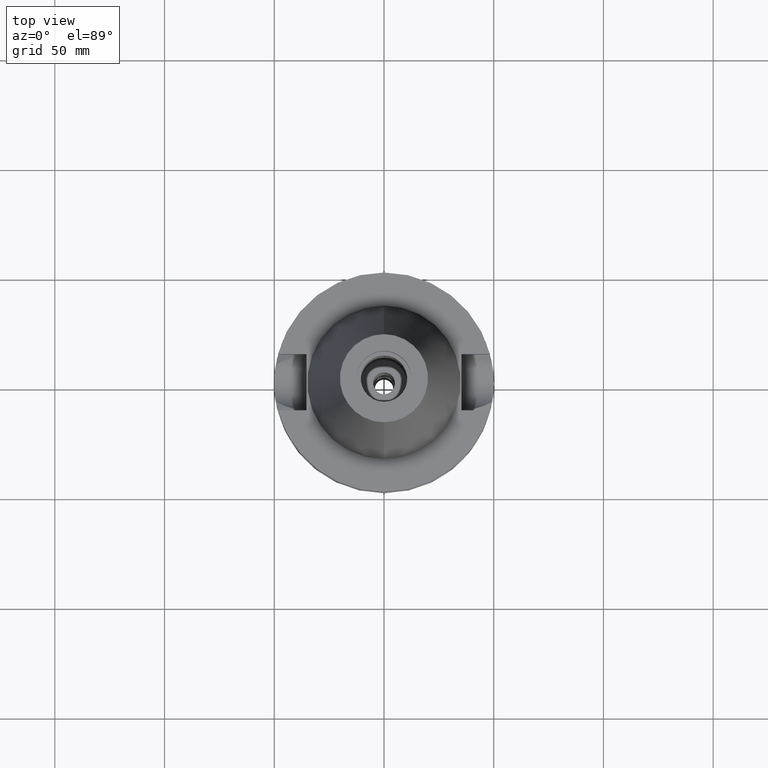
[diagram: clean part render]
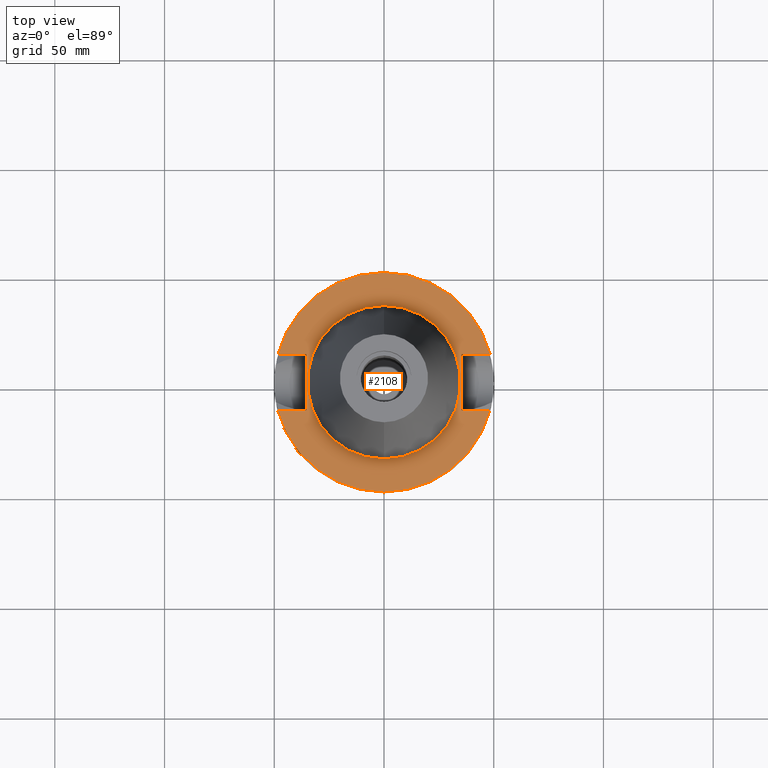
[diagram: same view with one face highlighted and labeled with its STEP entity id]
A machine part, top view. The second image highlights one B-rep face of the part: STEP entity #2108.
In plain terms, the highlighted planar face has unit normal (0, 0, -1).
Its self-contained STEP definition (entity closure, byte-faithful):
#11 = CARTESIAN_POINT ( 'NONE',  ( 0.0000000000000000000, 2.652462502272999887E-14, -3.000000000000000000 ) ) ;
#29 = DIRECTION ( 'NONE',  ( 1.000000000000000000, 0.0000000000000000000, 0.0000000000000000000 ) ) ;
#72 = EDGE_CURVE ( 'NONE', #1642, #747, #3582, .T. ) ;
#199 = FACE_BOUND ( 'NONE', #912, .T. ) ;
#252 = VERTEX_POINT ( 'NONE', #862 ) ;
#261 = DIRECTION ( 'NONE',  ( 0.0000000000000000000, -1.000000000000000000, 0.0000000000000000000 ) ) ;
#339 = VECTOR ( 'NONE', #29, 1000.000000000000000 ) ;
#360 = VERTEX_POINT ( 'NONE', #3191 ) ;
#400 = AXIS2_PLACEMENT_3D ( 'NONE', #2760, #3333, #2718 ) ;
#424 = CARTESIAN_POINT ( 'NONE',  ( -48.32057015392000210, 12.84999999999999964, -3.000000000000000000 ) ) ;
#465 = PLANE ( 'NONE',  #400 ) ;
#503 = CARTESIAN_POINT ( 'NONE',  ( 0.0000000000000000000, 2.652462502272999887E-14, -3.000000000000000000 ) ) ;
#559 = VECTOR ( 'NONE', #261, 1000.000000000000000 ) ;
#647 = CARTESIAN_POINT ( 'NONE',  ( 48.32057015392000210, 12.84999999999999964, -3.000000000000000000 ) ) ;
#665 = EDGE_CURVE ( 'NONE', #2695, #3608, #2510, .T. ) ;
#731 = ORIENTED_EDGE ( 'NONE', *, *, #1996, .T. ) ;
#747 = VERTEX_POINT ( 'NONE', #647 ) ;
#811 = CARTESIAN_POINT ( 'NONE',  ( 0.0000000000000000000, 34.92499999999999716, -3.000000000000000000 ) ) ;
#862 = CARTESIAN_POINT ( 'NONE',  ( 35.39999999999999858, 12.84999999999999964, -3.000000000000000000 ) ) ;
#912 = EDGE_LOOP ( 'NONE', ( #2364, #1498 ) ) ;
#920 = DIRECTION ( 'NONE',  ( 0.0000000000000000000, 1.000000000000000000, 0.0000000000000000000 ) ) ;
#927 = CARTESIAN_POINT ( 'NONE',  ( 0.0000000000000000000, 2.652462502272999887E-14, -3.000000000000000000 ) ) ;
#1009 = AXIS2_PLACEMENT_3D ( 'NONE', #2319, #1152, #3201 ) ;
#1031 = CARTESIAN_POINT ( 'NONE',  ( 48.32057015392000210, -12.84999999999999964, -3.000000000000000000 ) ) ;
#1056 = VECTOR ( 'NONE', #2413, 1000.000000000000000 ) ;
#1091 = CARTESIAN_POINT ( 'NONE',  ( -35.39999999999999858, -12.84999999999999964, -3.000000000000000000 ) ) ;
#1097 = CARTESIAN_POINT ( 'NONE',  ( 35.39999999999999858, 12.84999999999999964, -3.000000000000000000 ) ) ;
#1102 = ORIENTED_EDGE ( 'NONE', *, *, #1759, .F. ) ;
#1139 = CARTESIAN_POINT ( 'NONE',  ( 35.39999999999999858, -12.84999999999999964, -3.000000000000000000 ) ) ;
#1147 = CARTESIAN_POINT ( 'NONE',  ( -35.39999999999999858, 12.84999999999999964, -3.000000000000000000 ) ) ;
#1152 = DIRECTION ( 'NONE',  ( 0.0000000000000000000, 0.0000000000000000000, -1.000000000000000000 ) ) ;
#1185 = DIRECTION ( 'NONE',  ( 0.0000000000000000000, -1.000000000000000000, 0.0000000000000000000 ) ) ;
#1347 = EDGE_LOOP ( 'NONE', ( #3639, #2587, #3059, #1102, #731, #1672, #1668, #3024 ) ) ;
#1438 = LINE ( 'NONE', #1097, #339 ) ;
#1454 = EDGE_CURVE ( 'NONE', #3544, #3123, #2619, .T. ) ;
#1478 = AXIS2_PLACEMENT_3D ( 'NONE', #11, #2320, #3669 ) ;
#1498 = ORIENTED_EDGE ( 'NONE', *, *, #2349, .F. ) ;
#1537 = CARTESIAN_POINT ( 'NONE',  ( 35.39999999999999858, -12.84999999999999964, -3.000000000000000000 ) ) ;
#1642 = VERTEX_POINT ( 'NONE', #424 ) ;
#1668 = ORIENTED_EDGE ( 'NONE', *, *, #3310, .F. ) ;
#1672 = ORIENTED_EDGE ( 'NONE', *, *, #72, .F. ) ;
#1684 = VERTEX_POINT ( 'NONE', #1031 ) ;
#1759 = EDGE_CURVE ( 'NONE', #252, #1927, #1911, .T. ) ;
#1783 = EDGE_CURVE ( 'NONE', #1684, #360, #2907, .T. ) ;
#1840 = LINE ( 'NONE', #1537, #2306 ) ;
#1846 = CARTESIAN_POINT ( 'NONE',  ( -35.39999999999999858, -12.84999999999999964, -3.000000000000000000 ) ) ;
#1879 = FACE_OUTER_BOUND ( 'NONE', #1347, .T. ) ;
#1911 = LINE ( 'NONE', #3063, #559 ) ;
#1927 = VERTEX_POINT ( 'NONE', #1139 ) ;
#1941 = CIRCLE ( 'NONE', #2004, 34.92499999999999716 ) ;
#1996 = EDGE_CURVE ( 'NONE', #252, #747, #1438, .T. ) ;
#2004 = AXIS2_PLACEMENT_3D ( 'NONE', #927, #2070, #1185 ) ;
#2070 = DIRECTION ( 'NONE',  ( 0.0000000000000000000, 0.0000000000000000000, 1.000000000000000000 ) ) ;
#2108 = ADVANCED_FACE ( 'NONE', ( #1879, #199 ), #465, .F. ) ;
#2194 = VECTOR ( 'NONE', #3445, 1000.000000000000000 ) ;
#2229 = DIRECTION ( 'NONE',  ( 0.0000000000000000000, 0.0000000000000000000, -1.000000000000000000 ) ) ;
#2306 = VECTOR ( 'NONE', #2951, 1000.000000000000000 ) ;
#2319 = CARTESIAN_POINT ( 'NONE',  ( 0.0000000000000000000, 2.652462502272999887E-14, -3.000000000000000000 ) ) ;
#2320 = DIRECTION ( 'NONE',  ( 0.0000000000000000000, 0.0000000000000000000, 1.000000000000000000 ) ) ;
#2349 = EDGE_CURVE ( 'NONE', #3608, #2695, #1941, .T. ) ;
#2364 = ORIENTED_EDGE ( 'NONE', *, *, #665, .F. ) ;
#2413 = DIRECTION ( 'NONE',  ( -1.000000000000000000, 0.0000000000000000000, 0.0000000000000000000 ) ) ;
#2441 = CARTESIAN_POINT ( 'NONE',  ( -35.39999999999999858, 12.84999999999999964, -3.000000000000000000 ) ) ;
#2510 = CIRCLE ( 'NONE', #1478, 34.92499999999999716 ) ;
#2519 = EDGE_CURVE ( 'NONE', #1927, #1684, #1840, .T. ) ;
#2587 = ORIENTED_EDGE ( 'NONE', *, *, #1783, .F. ) ;
#2619 = LINE ( 'NONE', #2639, #3293 ) ;
#2639 = CARTESIAN_POINT ( 'NONE',  ( -35.39999999999999858, -12.84999999999999964, -3.000000000000000000 ) ) ;
#2695 = VERTEX_POINT ( 'NONE', #811 ) ;
#2718 = DIRECTION ( 'NONE',  ( 0.0000000000000000000, -1.000000000000000000, 0.0000000000000000000 ) ) ;
#2760 = CARTESIAN_POINT ( 'NONE',  ( 0.0000000000000000000, 1.187907395172999884E-14, -3.000000000000000000 ) ) ;
#2778 = CARTESIAN_POINT ( 'NONE',  ( 0.0000000000000000000, -34.92499999999999716, -3.000000000000000000 ) ) ;
#2907 = CIRCLE ( 'NONE', #3448, 50.00000000000000000 ) ;
#2951 = DIRECTION ( 'NONE',  ( 1.000000000000000000, 0.0000000000000000000, 0.0000000000000000000 ) ) ;
#3024 = ORIENTED_EDGE ( 'NONE', *, *, #1454, .F. ) ;
#3059 = ORIENTED_EDGE ( 'NONE', *, *, #2519, .F. ) ;
#3063 = CARTESIAN_POINT ( 'NONE',  ( 35.39999999999999858, 12.84999999999999964, -3.000000000000000000 ) ) ;
#3080 = DIRECTION ( 'NONE',  ( 0.0000000000000000000, -1.000000000000000000, 0.0000000000000000000 ) ) ;
#3123 = VERTEX_POINT ( 'NONE', #2441 ) ;
#3191 = CARTESIAN_POINT ( 'NONE',  ( -48.32057015392000210, -12.84999999999999964, -3.000000000000000000 ) ) ;
#3201 = DIRECTION ( 'NONE',  ( 0.0000000000000000000, 1.000000000000000000, 0.0000000000000000000 ) ) ;
#3293 = VECTOR ( 'NONE', #920, 1000.000000000000000 ) ;
#3301 = LINE ( 'NONE', #1846, #1056 ) ;
#3310 = EDGE_CURVE ( 'NONE', #3123, #1642, #3495, .T. ) ;
#3333 = DIRECTION ( 'NONE',  ( 0.0000000000000000000, 0.0000000000000000000, -1.000000000000000000 ) ) ;
#3445 = DIRECTION ( 'NONE',  ( -1.000000000000000000, 0.0000000000000000000, 0.0000000000000000000 ) ) ;
#3448 = AXIS2_PLACEMENT_3D ( 'NONE', #503, #2229, #3080 ) ;
#3481 = EDGE_CURVE ( 'NONE', #3544, #360, #3301, .T. ) ;
#3495 = LINE ( 'NONE', #1147, #2194 ) ;
#3544 = VERTEX_POINT ( 'NONE', #1091 ) ;
#3582 = CIRCLE ( 'NONE', #1009, 50.00000000000000000 ) ;
#3608 = VERTEX_POINT ( 'NONE', #2778 ) ;
#3639 = ORIENTED_EDGE ( 'NONE', *, *, #3481, .T. ) ;
#3669 = DIRECTION ( 'NONE',  ( 0.0000000000000000000, 1.000000000000000000, 0.0000000000000000000 ) ) ;